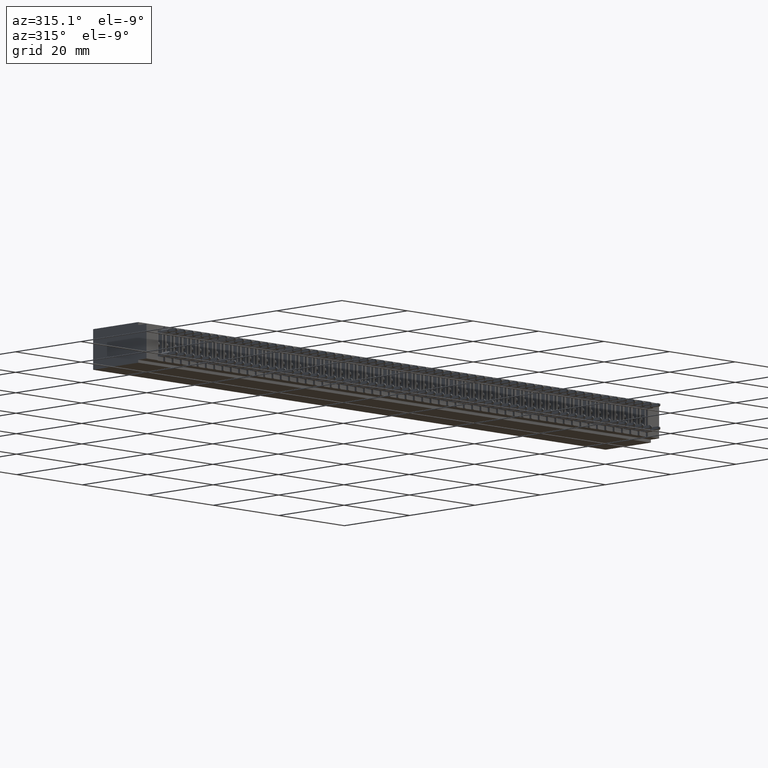
[diagram: clean part render]
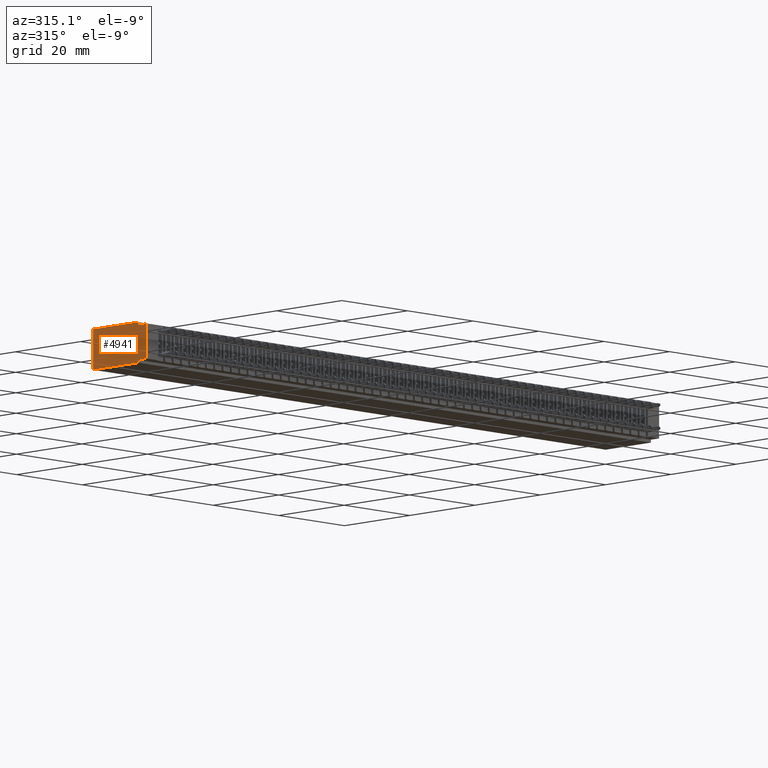
[diagram: same view with one face highlighted and labeled with its STEP entity id]
A machine part, auxiliary view. The second image highlights one B-rep face of the part: STEP entity #4941.
In plain terms, the highlighted planar face has unit normal (1, 0, 0).
Its self-contained STEP definition (entity closure, byte-faithful):
#1168 = DIRECTION ( 'NONE',  ( -0.0000000000000000000, -0.0000000000000000000, 1.000000000000000000 ) ) ;
#2516 = PLANE ( 'NONE',  #15063 ) ;
#4834 = CARTESIAN_POINT ( 'NONE',  ( 0.0000000000000000000, 0.1000000000000000056, -0.02500000000000000486 ) ) ;
#4941 = ADVANCED_FACE ( 'NONE', ( #17713 ), #2516, .F. ) ;
#4962 = VECTOR ( 'NONE', #35449, 39.37007874015748143 ) ;
#5652 = CARTESIAN_POINT ( 'NONE',  ( 0.0000000000000000000, 0.6449999999999999067, -0.3499999999999999778 ) ) ;
#7305 = CARTESIAN_POINT ( 'NONE',  ( 0.0000000000000000000, 0.6449999999999999067, 0.0000000000000000000 ) ) ;
#8771 = VECTOR ( 'NONE', #14534, 39.37007874015748143 ) ;
#8909 = DIRECTION ( 'NONE',  ( 1.000000000000000000, -0.0000000000000000000, 0.0000000000000000000 ) ) ;
#10652 = CARTESIAN_POINT ( 'NONE',  ( 0.0000000000000000000, 0.0000000000000000000, -0.3249999999999999556 ) ) ;
#14534 = DIRECTION ( 'NONE',  ( -0.0000000000000000000, -1.000000000000000000, -0.0000000000000000000 ) ) ;
#15063 = AXIS2_PLACEMENT_3D ( 'NONE', #55509, #8909, #46697 ) ;
#17713 = FACE_OUTER_BOUND ( 'NONE', #23569, .T. ) ;
#18308 = CARTESIAN_POINT ( 'NONE',  ( 0.0000000000000000000, 0.6449999999999999067, 0.0000000000000000000 ) ) ;
#18608 = LINE ( 'NONE', #25978, #44272 ) ;
#19205 = DIRECTION ( 'NONE',  ( -0.0000000000000000000, -1.000000000000000000, -0.0000000000000000000 ) ) ;
#22416 = EDGE_CURVE ( 'NONE', #52798, #68316, #84561, .T. ) ;
#22850 = VERTEX_POINT ( 'NONE', #31461 ) ;
#23148 = CARTESIAN_POINT ( 'NONE',  ( 0.0000000000000000000, 0.6449999999999999067, -0.3499999999999999778 ) ) ;
#23569 = EDGE_LOOP ( 'NONE', ( #67255, #71522, #80837, #30810, #63259, #59911, #32624, #47043 ) ) ;
#24904 = CARTESIAN_POINT ( 'NONE',  ( 0.0000000000000000000, 0.1000000000000000056, -0.3499999999999999778 ) ) ;
#25480 = DIRECTION ( 'NONE',  ( -0.0000000000000000000, -0.0000000000000000000, 1.000000000000000000 ) ) ;
#25978 = CARTESIAN_POINT ( 'NONE',  ( 0.0000000000000000000, 0.0000000000000000000, 0.0000000000000000000 ) ) ;
#27622 = VECTOR ( 'NONE', #35362, 39.37007874015748143 ) ;
#28079 = VERTEX_POINT ( 'NONE', #84980 ) ;
#29287 = LINE ( 'NONE', #66576, #8771 ) ;
#30810 = ORIENTED_EDGE ( 'NONE', *, *, #83917, .F. ) ;
#31461 = CARTESIAN_POINT ( 'NONE',  ( 0.0000000000000000000, 0.1000000000000000056, -0.3499999999999999778 ) ) ;
#32624 = ORIENTED_EDGE ( 'NONE', *, *, #84571, .F. ) ;
#32668 = VERTEX_POINT ( 'NONE', #41938 ) ;
#35362 = DIRECTION ( 'NONE',  ( 0.0000000000000000000, 0.0000000000000000000, -1.000000000000000000 ) ) ;
#35442 = CARTESIAN_POINT ( 'NONE',  ( 0.0000000000000000000, 0.6449999999999999067, 0.0000000000000000000 ) ) ;
#35449 = DIRECTION ( 'NONE',  ( 0.0000000000000000000, 1.000000000000000000, 0.0000000000000000000 ) ) ;
#36229 = VERTEX_POINT ( 'NONE', #58532 ) ;
#41822 = LINE ( 'NONE', #35442, #62118 ) ;
#41938 = CARTESIAN_POINT ( 'NONE',  ( 0.0000000000000000000, 0.1000000000000000056, 0.0000000000000000000 ) ) ;
#42784 = CARTESIAN_POINT ( 'NONE',  ( 0.0000000000000000000, 0.0000000000000000000, -0.3249999999999999556 ) ) ;
#44272 = VECTOR ( 'NONE', #25480, 39.37007874015748143 ) ;
#46697 = DIRECTION ( 'NONE',  ( 0.0000000000000000000, 0.0000000000000000000, -1.000000000000000000 ) ) ;
#47043 = ORIENTED_EDGE ( 'NONE', *, *, #66667, .F. ) ;
#48133 = LINE ( 'NONE', #79505, #27622 ) ;
#50151 = LINE ( 'NONE', #42784, #4962 ) ;
#52798 = VERTEX_POINT ( 'NONE', #23148 ) ;
#54827 = DIRECTION ( 'NONE',  ( -0.0000000000000000000, -0.0000000000000000000, -1.000000000000000000 ) ) ;
#55509 = CARTESIAN_POINT ( 'NONE',  ( 0.0000000000000000000, 0.6449999999999999067, 0.0000000000000000000 ) ) ;
#57715 = LINE ( 'NONE', #5652, #90345 ) ;
#58532 = CARTESIAN_POINT ( 'NONE',  ( 0.0000000000000000000, 0.1000000000000000056, -0.3249999999999999556 ) ) ;
#59831 = VERTEX_POINT ( 'NONE', #10652 ) ;
#59911 = ORIENTED_EDGE ( 'NONE', *, *, #85586, .T. ) ;
#60509 = VECTOR ( 'NONE', #54827, 39.37007874015748143 ) ;
#62118 = VECTOR ( 'NONE', #19205, 39.37007874015748143 ) ;
#63259 = ORIENTED_EDGE ( 'NONE', *, *, #22416, .F. ) ;
#66576 = CARTESIAN_POINT ( 'NONE',  ( 0.0000000000000000000, 0.0000000000000000000, -0.02500000000000000486 ) ) ;
#66667 = EDGE_CURVE ( 'NONE', #59831, #36229, #50151, .T. ) ;
#67255 = ORIENTED_EDGE ( 'NONE', *, *, #78843, .T. ) ;
#68316 = VERTEX_POINT ( 'NONE', #7305 ) ;
#71306 = VERTEX_POINT ( 'NONE', #4834 ) ;
#71522 = ORIENTED_EDGE ( 'NONE', *, *, #84817, .F. ) ;
#75887 = VECTOR ( 'NONE', #1168, 39.37007874015748143 ) ;
#78843 = EDGE_CURVE ( 'NONE', #59831, #28079, #18608, .T. ) ;
#79505 = CARTESIAN_POINT ( 'NONE',  ( 0.0000000000000000000, 0.1000000000000000056, 0.0000000000000000000 ) ) ;
#80837 = ORIENTED_EDGE ( 'NONE', *, *, #96545, .F. ) ;
#83917 = EDGE_CURVE ( 'NONE', #68316, #32668, #41822, .T. ) ;
#84561 = LINE ( 'NONE', #18308, #75887 ) ;
#84571 = EDGE_CURVE ( 'NONE', #36229, #22850, #92128, .T. ) ;
#84817 = EDGE_CURVE ( 'NONE', #71306, #28079, #29287, .T. ) ;
#84980 = CARTESIAN_POINT ( 'NONE',  ( 0.0000000000000000000, 0.0000000000000000000, -0.02500000000000000486 ) ) ;
#85586 = EDGE_CURVE ( 'NONE', #52798, #22850, #57715, .T. ) ;
#88119 = DIRECTION ( 'NONE',  ( -0.0000000000000000000, -1.000000000000000000, -0.0000000000000000000 ) ) ;
#90345 = VECTOR ( 'NONE', #88119, 39.37007874015748143 ) ;
#92128 = LINE ( 'NONE', #24904, #60509 ) ;
#96545 = EDGE_CURVE ( 'NONE', #32668, #71306, #48133, .T. ) ;